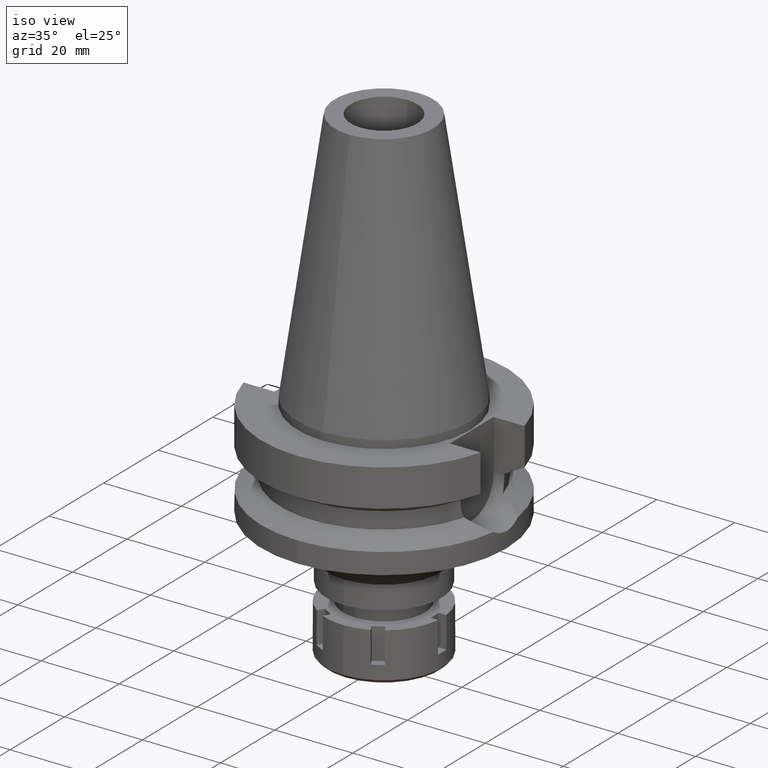
[diagram: clean part render]
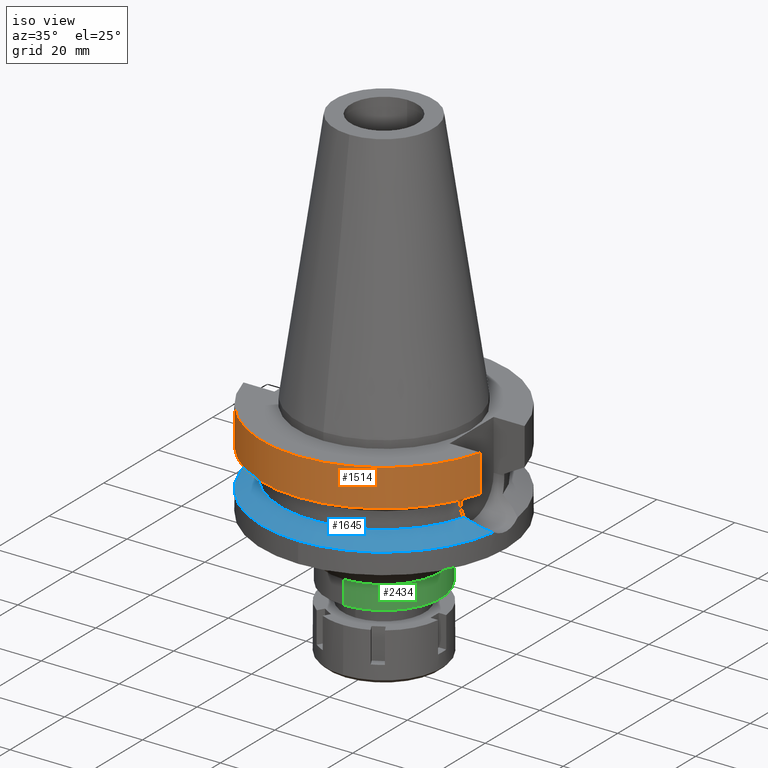
[diagram: same view with three faces highlighted in distinct colors, each labeled with its STEP entity id]
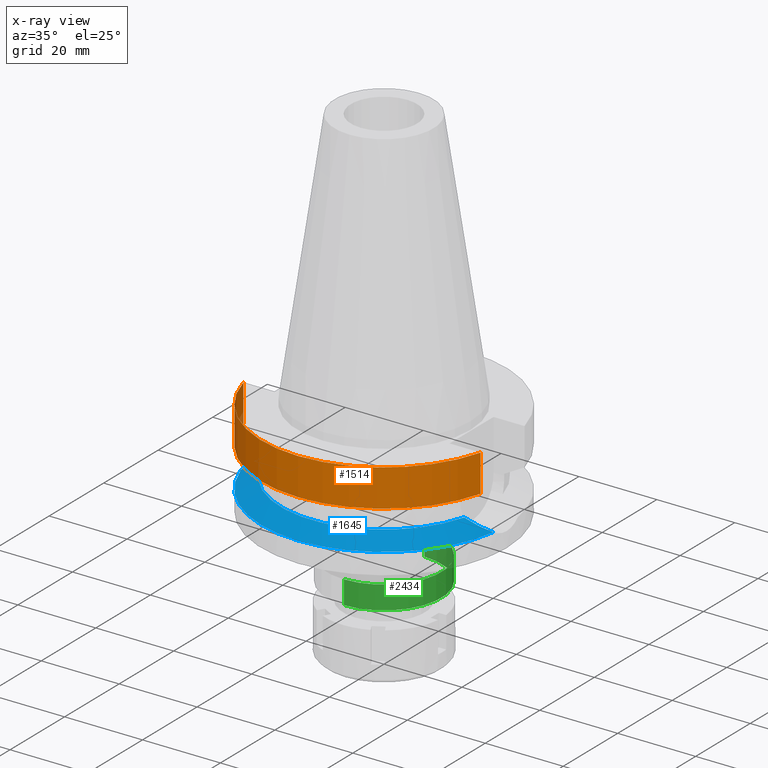
[diagram: x-ray of the same camera — body ghosted, the three highlighted faces saturated]
A machine part, iso view with three faces highlighted in distinct colors.
The next image is the same camera in x-ray (body ghosted, the three faces saturated) — at least one of them is partly hidden behind the body in this view.
Their STEP definitions:

[orange] entity #1514 — the highlighted cylindrical surface (partial cylindrical patch) has radius 31.5 mm, axis along (0, 0, -1).
#168 = VERTEX_POINT ( 'NONE', #1703 ) ;
#223 = EDGE_CURVE ( 'NONE', #168, #2693, #907, .T. ) ;
#341 = DIRECTION ( 'NONE',  ( -1.154661693704997689E-07, -4.368204397895988932E-07, -0.9999999999998978595 ) ) ;
#633 = CARTESIAN_POINT ( 'NONE',  ( -30.45402291890999891, -8.049999258039999717, -11.56551233533000023 ) ) ;
#797 = EDGE_CURVE ( 'NONE', #168, #2552, #1035, .T. ) ;
#873 = CIRCLE ( 'NONE', #1328, 31.50000000000000000 ) ;
#907 = LINE ( 'NONE', #1982, #3163 ) ;
#1035 = CIRCLE ( 'NONE', #2221, 31.50000000000000000 ) ;
#1062 = DIRECTION ( 'NONE',  ( 0.0000000000000000000, 0.0000000000000000000, -1.000000000000000000 ) ) ;
#1177 = DIRECTION ( 'NONE',  ( 0.0000000000000000000, 0.0000000000000000000, -1.000000000000000000 ) ) ;
#1321 = DIRECTION ( 'NONE',  ( 0.0000000000000000000, -1.000000000000000000, 0.0000000000000000000 ) ) ;
#1328 = AXIS2_PLACEMENT_3D ( 'NONE', #2192, #3143, #1454 ) ;
#1384 = DIRECTION ( 'NONE',  ( 0.0000000000000000000, -1.000000000000000000, 0.0000000000000000000 ) ) ;
#1454 = DIRECTION ( 'NONE',  ( 0.0000000000000000000, -1.000000000000000000, 0.0000000000000000000 ) ) ;
#1514 = ADVANCED_FACE ( 'NONE', ( #1917 ), #3565, .T. ) ;
#1544 = AXIS2_PLACEMENT_3D ( 'NONE', #2194, #1062, #1321 ) ;
#1594 = ORIENTED_EDGE ( 'NONE', *, *, #2858, .T. ) ;
#1670 = CARTESIAN_POINT ( 'NONE',  ( 0.0000000000000000000, 2.098064896298999980E-14, -2.000000000000000000 ) ) ;
#1703 = CARTESIAN_POINT ( 'NONE',  ( 30.45402272279000044, -8.050000000000000711, -2.000000000000000000 ) ) ;
#1809 = CARTESIAN_POINT ( 'NONE',  ( -30.45402291890999891, -8.049999258039999717, -11.56551233533000023 ) ) ;
#1813 = EDGE_CURVE ( 'NONE', #1943, #2552, #1931, .T. ) ;
#1854 = EDGE_LOOP ( 'NONE', ( #2889, #1594, #2707, #2425 ) ) ;
#1917 = FACE_OUTER_BOUND ( 'NONE', #1854, .T. ) ;
#1931 = LINE ( 'NONE', #633, #3351 ) ;
#1943 = VERTEX_POINT ( 'NONE', #1809 ) ;
#1970 = CARTESIAN_POINT ( 'NONE',  ( -30.45402272279000044, -8.050000000000000711, -2.000000000000000000 ) ) ;
#1982 = CARTESIAN_POINT ( 'NONE',  ( 30.45402272279000044, -8.050000000000000711, -2.000000000000000000 ) ) ;
#2192 = CARTESIAN_POINT ( 'NONE',  ( 0.0000000000000000000, 1.065333950388000029E-14, -11.56550565266999975 ) ) ;
#2194 = CARTESIAN_POINT ( 'NONE',  ( 0.0000000000000000000, 2.098064896298999980E-14, 71.31999999999999318 ) ) ;
#2221 = AXIS2_PLACEMENT_3D ( 'NONE', #1670, #1177, #1384 ) ;
#2425 = ORIENTED_EDGE ( 'NONE', *, *, #797, .T. ) ;
#2552 = VERTEX_POINT ( 'NONE', #1970 ) ;
#2693 = VERTEX_POINT ( 'NONE', #3529 ) ;
#2707 = ORIENTED_EDGE ( 'NONE', *, *, #223, .F. ) ;
#2826 = DIRECTION ( 'NONE',  ( 2.050319544476988782E-08, -7.756607190603944678E-08, 0.9999999999999967804 ) ) ;
#2858 = EDGE_CURVE ( 'NONE', #1943, #2693, #873, .T. ) ;
#2889 = ORIENTED_EDGE ( 'NONE', *, *, #1813, .F. ) ;
#3143 = DIRECTION ( 'NONE',  ( 0.0000000000000000000, 0.0000000000000000000, 1.000000000000000000 ) ) ;
#3163 = VECTOR ( 'NONE', #341, 1000.000000000000227 ) ;
#3351 = VECTOR ( 'NONE', #2826, 1000.000000000000114 ) ;
#3529 = CARTESIAN_POINT ( 'NONE',  ( 30.45402272279000044, -8.049999999999000622, -11.56550565266999975 ) ) ;
#3565 = CYLINDRICAL_SURFACE ( 'NONE', #1544, 31.50000000000000000 ) ;

[blue] entity #1645 — the highlighted conical surface has half-angle 60 deg.
#81 = CARTESIAN_POINT ( 'NONE',  ( 25.53175183775000079, -7.097862220092999941, -18.74774300138999905 ) ) ;
#265 = CARTESIAN_POINT ( 'NONE',  ( 0.0000000000000000000, 0.0000000000000000000, -18.74774300138999905 ) ) ;
#273 = CARTESIAN_POINT ( 'NONE',  ( -26.81554015597956564, -6.744970810013547258, -19.40728594741513291 ) ) ;
#277 = EDGE_LOOP ( 'NONE', ( #2096, #1717, #652, #2780, #3179 ) ) ;
#287 = VERTEX_POINT ( 'NONE', #1230 ) ;
#344 = CARTESIAN_POINT ( 'NONE',  ( 28.25235138627576603, -6.152592261718259792, -20.14184586796912768 ) ) ;
#365 = CARTESIAN_POINT ( 'NONE',  ( 27.86945335567231652, -6.314200628139903237, -19.94619761923122780 ) ) ;
#420 = AXIS2_PLACEMENT_3D ( 'NONE', #1753, #1719, #1433 ) ;
#536 = CARTESIAN_POINT ( 'NONE',  ( 0.0000000000000000000, 0.0000000000000000000, -20.19111867435999841 ) ) ;
#618 = EDGE_CURVE ( 'NONE', #2831, #2763, #1120, .T. ) ;
#635 = CIRCLE ( 'NONE', #1775, 26.49999999999998224 ) ;
#652 = ORIENTED_EDGE ( 'NONE', *, *, #2587, .F. ) ;
#779 = CARTESIAN_POINT ( 'NONE',  ( -29.24551071207741160, -5.686347265345459867, -20.64900779022842414 ) ) ;
#795 = CARTESIAN_POINT ( 'NONE',  ( -29.92159141083256557, -5.319402256931750728, -20.99398365360424279 ) ) ;
#854 = DIRECTION ( 'NONE',  ( 0.0000000000000000000, 0.0000000000000000000, 1.000000000000000000 ) ) ;
#920 = CIRCLE ( 'NONE', #2926, 31.50000000000000000 ) ;
#925 = CONICAL_SURFACE ( 'NONE', #1043, 29.00000000000000000, 1.047197551196400456 ) ;
#933 = EDGE_CURVE ( 'NONE', #287, #2831, #920, .T. ) ;
#1040 = DIRECTION ( 'NONE',  ( 0.0000000000000000000, -1.000000000000000000, 0.0000000000000000000 ) ) ;
#1043 = AXIS2_PLACEMENT_3D ( 'NONE', #536, #2701, #1040 ) ;
#1120 = B_SPLINE_CURVE_WITH_KNOTS ( 'NONE', 3,
 ( #3274, #2716, #2935, #795, #2092, #3256, #779, #2957, #1597, #2732, #2441, #3561, #273, #2692 ),
 .UNSPECIFIED., .F., .F.,
 ( 4, 2, 2, 1, 1, 2, 2, 4 ),
 ( 0.0000000000000000000, 0.2499999999999997224, 0.3749999999999990563, 0.4374999999999987232, 0.4687499999999987232, 0.4843749999999987232, 0.4999999999999987788, 1.000000000000000000 ),
 .UNSPECIFIED. ) ;
#1230 = CARTESIAN_POINT ( 'NONE',  ( 0.0000000000000000000, -31.50000000000000000, -21.63449434733000132 ) ) ;
#1302 = CARTESIAN_POINT ( 'NONE',  ( 31.17899877608999759, -4.485536235554000051, -21.63449434733000132 ) ) ;
#1358 = DIRECTION ( 'NONE',  ( -0.9634623335000935818, -0.2678438573619981722, 0.0000000000000000000 ) ) ;
#1433 = DIRECTION ( 'NONE',  ( 0.9898094849552905306, -0.1423979757318985240, 0.0000000000000000000 ) ) ;
#1441 = CARTESIAN_POINT ( 'NONE',  ( 28.82946180511639156, -5.890708039826377806, -20.43656979797730600 ) ) ;
#1457 = CARTESIAN_POINT ( 'NONE',  ( 28.43969514202140658, -6.070956264112525425, -20.23753676819694292 ) ) ;
#1468 = DIRECTION ( 'NONE',  ( 0.0000000000000000000, 0.0000000000000000000, -1.000000000000000000 ) ) ;
#1483 = VERTEX_POINT ( 'NONE', #1302 ) ;
#1597 = CARTESIAN_POINT ( 'NONE',  ( -28.96981053673506423, -5.823131797125659759, -20.50823927557765103 ) ) ;
#1645 = ADVANCED_FACE ( 'NONE', ( #1851 ), #925, .T. ) ;
#1717 = ORIENTED_EDGE ( 'NONE', *, *, #3492, .F. ) ;
#1719 = DIRECTION ( 'NONE',  ( 0.0000000000000000000, 0.0000000000000000000, -1.000000000000000000 ) ) ;
#1726 = CARTESIAN_POINT ( 'NONE',  ( 27.60324064312049330, -6.419724010670028846, -19.81007306123007439 ) ) ;
#1743 = CARTESIAN_POINT ( 'NONE',  ( 29.76042114376186731, -5.445736050609256473, -20.91197635220153472 ) ) ;
#1753 = CARTESIAN_POINT ( 'NONE',  ( 0.0000000000000000000, 0.0000000000000000000, -21.63449434733000132 ) ) ;
#1775 = AXIS2_PLACEMENT_3D ( 'NONE', #265, #854, #1358 ) ;
#1851 = FACE_OUTER_BOUND ( 'NONE', #277, .T. ) ;
#1986 = CARTESIAN_POINT ( 'NONE',  ( 26.17365085101560140, -6.921415180731088412, -19.07751696820677978 ) ) ;
#2008 = CARTESIAN_POINT ( 'NONE',  ( 28.79915898265892693, -5.905085260130360503, -20.42109570289354536 ) ) ;
#2015 = VERTEX_POINT ( 'NONE', #2382 ) ;
#2038 = CARTESIAN_POINT ( 'NONE',  ( 0.0000000000000000000, 0.0000000000000000000, -21.63449434733000132 ) ) ;
#2081 = CARTESIAN_POINT ( 'NONE',  ( 30.53419650440311628, -4.974727501845151778, -21.30622940505814356 ) ) ;
#2092 = CARTESIAN_POINT ( 'NONE',  ( -29.72007842973867042, -5.434031598386737549, -20.89120306133314031 ) ) ;
#2096 = ORIENTED_EDGE ( 'NONE', *, *, #933, .F. ) ;
#2330 = CARTESIAN_POINT ( 'NONE',  ( 31.17899877608999759, -4.485536235554000051, -21.63449434733000132 ) ) ;
#2341 = EDGE_CURVE ( 'NONE', #2763, #2015, #635, .T. ) ;
#2382 = CARTESIAN_POINT ( 'NONE',  ( 25.53175183775000079, -7.097862220092999941, -18.74774300138999905 ) ) ;
#2441 = CARTESIAN_POINT ( 'NONE',  ( -28.88676039822705377, -5.863320934598894141, -20.46583029993504965 ) ) ;
#2458 = CARTESIAN_POINT ( 'NONE',  ( -31.17899877608999759, -4.485536235554000051, -21.63449434733000132 ) ) ;
#2548 = CARTESIAN_POINT ( 'NONE',  ( 28.65107865283486177, -5.974467339090846707, -20.34547993876199357 ) ) ;
#2587 = EDGE_CURVE ( 'NONE', #2015, #1483, #3262, .T. ) ;
#2692 = CARTESIAN_POINT ( 'NONE',  ( -25.53175183775000079, -7.097862220092999941, -18.74774300138999905 ) ) ;
#2696 = CARTESIAN_POINT ( 'NONE',  ( -25.53175183775000079, -7.097862220092999941, -18.74774300138999905 ) ) ;
#2701 = DIRECTION ( 'NONE',  ( 0.0000000000000000000, 0.0000000000000000000, -1.000000000000000000 ) ) ;
#2716 = CARTESIAN_POINT ( 'NONE',  ( -30.85659570990213396, -4.730133333199276535, -21.47036089346375931 ) ) ;
#2732 = CARTESIAN_POINT ( 'NONE',  ( -28.91388946736158161, -5.850255072922319499, -20.47968383843204876 ) ) ;
#2763 = VERTEX_POINT ( 'NONE', #2696 ) ;
#2780 = ORIENTED_EDGE ( 'NONE', *, *, #2341, .F. ) ;
#2804 = CARTESIAN_POINT ( 'NONE',  ( 26.77176042901642461, -6.727640408791173421, -19.38441322664797539 ) ) ;
#2831 = VERTEX_POINT ( 'NONE', #2458 ) ;
#2857 = DIRECTION ( 'NONE',  ( 0.0000000000000000000, -1.000000000000000000, 0.0000000000000000000 ) ) ;
#2926 = AXIS2_PLACEMENT_3D ( 'NONE', #2038, #1468, #2857 ) ;
#2935 = CARTESIAN_POINT ( 'NONE',  ( -30.50194348531429256, -4.970135316737882114, -21.28982413302286147 ) ) ;
#2957 = CARTESIAN_POINT ( 'NONE',  ( -29.05331422097026817, -5.782332426231231892, -20.55087818141452871 ) ) ;
#3123 = CIRCLE ( 'NONE', #420, 31.50000000000001421 ) ;
#3179 = ORIENTED_EDGE ( 'NONE', *, *, #618, .F. ) ;
#3256 = CARTESIAN_POINT ( 'NONE',  ( -29.40571552369783603, -5.602775577380048944, -20.73078101441133825 ) ) ;
#3262 = B_SPLINE_CURVE_WITH_KNOTS ( 'NONE', 3,
 ( #81, #1986, #2804, #1726, #365, #344, #1457, #2548, #3406, #2008, #1441, #1743, #2081, #2330 ),
 .UNSPECIFIED., .F., .F.,
 ( 4, 2, 2, 1, 1, 2, 2, 4 ),
 ( 0.0000000000000000000, 0.2499999999999986677, 0.3749999999999980016, 0.4374999999999976130, 0.4687499999999973910, 0.4843749999999981681, 0.4999999999999990008, 1.000000000000000000 ),
 .UNSPECIFIED. ) ;
#3274 = CARTESIAN_POINT ( 'NONE',  ( -31.17899877608999759, -4.485536235554000051, -21.63449434733000132 ) ) ;
#3406 = CARTESIAN_POINT ( 'NONE',  ( 28.74013211370711218, -5.932869399142538747, -20.39095403512538951 ) ) ;
#3492 = EDGE_CURVE ( 'NONE', #1483, #287, #3123, .T. ) ;
#3561 = CARTESIAN_POINT ( 'NONE',  ( -27.92415303611726429, -6.323415574179257703, -19.97425974433526363 ) ) ;

[green] entity #2434 — the highlighted cylindrical surface (partial cylindrical patch) has radius 14.75 mm, axis along (0, 0, -1).
#34 = ORIENTED_EDGE ( 'NONE', *, *, #1391, .F. ) ;
#161 = DIRECTION ( 'NONE',  ( 0.0000000000000000000, 0.0000000000000000000, -1.000000000000000000 ) ) ;
#232 = VECTOR ( 'NONE', #161, 1000.000000000000000 ) ;
#263 = CARTESIAN_POINT ( 'NONE',  ( 0.0000000000000000000, -14.75000000000000000, -43.00000000000000000 ) ) ;
#270 = VERTEX_POINT ( 'NONE', #2255 ) ;
#431 = CARTESIAN_POINT ( 'NONE',  ( 0.0000000000000000000, 14.75000000000000000, -37.00000000000000000 ) ) ;
#567 = CARTESIAN_POINT ( 'NONE',  ( 0.0000000000000000000, 2.098064896298999980E-14, -43.00000000000000000 ) ) ;
#649 = LINE ( 'NONE', #3140, #1893 ) ;
#726 = LINE ( 'NONE', #431, #232 ) ;
#922 = AXIS2_PLACEMENT_3D ( 'NONE', #567, #2395, #3520 ) ;
#1131 = FACE_OUTER_BOUND ( 'NONE', #1228, .T. ) ;
#1134 = EDGE_CURVE ( 'NONE', #1548, #1545, #1430, .T. ) ;
#1228 = EDGE_LOOP ( 'NONE', ( #1644, #2082, #2988, #34 ) ) ;
#1391 = EDGE_CURVE ( 'NONE', #270, #1545, #726, .T. ) ;
#1430 = CIRCLE ( 'NONE', #922, 14.75000000000000000 ) ;
#1545 = VERTEX_POINT ( 'NONE', #2753 ) ;
#1548 = VERTEX_POINT ( 'NONE', #263 ) ;
#1644 = ORIENTED_EDGE ( 'NONE', *, *, #2384, .T. ) ;
#1893 = VECTOR ( 'NONE', #2543, 1000.000000000000000 ) ;
#1934 = CARTESIAN_POINT ( 'NONE',  ( 0.0000000000000000000, 2.098064896298999980E-14, 71.31999999999999318 ) ) ;
#2082 = ORIENTED_EDGE ( 'NONE', *, *, #3434, .T. ) ;
#2208 = CYLINDRICAL_SURFACE ( 'NONE', #2757, 14.75000000000000000 ) ;
#2255 = CARTESIAN_POINT ( 'NONE',  ( 0.0000000000000000000, 14.75000000000000000, -37.00000000000000000 ) ) ;
#2384 = EDGE_CURVE ( 'NONE', #270, #3538, #2519, .T. ) ;
#2395 = DIRECTION ( 'NONE',  ( 0.0000000000000000000, 0.0000000000000000000, 1.000000000000000000 ) ) ;
#2434 = ADVANCED_FACE ( 'NONE', ( #1131 ), #2208, .T. ) ;
#2464 = AXIS2_PLACEMENT_3D ( 'NONE', #3566, #3038, #3078 ) ;
#2519 = CIRCLE ( 'NONE', #2464, 14.75000000000000000 ) ;
#2543 = DIRECTION ( 'NONE',  ( 0.0000000000000000000, 0.0000000000000000000, -1.000000000000000000 ) ) ;
#2753 = CARTESIAN_POINT ( 'NONE',  ( 0.0000000000000000000, 14.75000000000000000, -43.00000000000000000 ) ) ;
#2757 = AXIS2_PLACEMENT_3D ( 'NONE', #1934, #3373, #3147 ) ;
#2988 = ORIENTED_EDGE ( 'NONE', *, *, #1134, .T. ) ;
#3038 = DIRECTION ( 'NONE',  ( 0.0000000000000000000, 0.0000000000000000000, -1.000000000000000000 ) ) ;
#3078 = DIRECTION ( 'NONE',  ( 0.0000000000000000000, 1.000000000000000000, 0.0000000000000000000 ) ) ;
#3140 = CARTESIAN_POINT ( 'NONE',  ( 0.0000000000000000000, -14.75000000000000000, -37.00000000000000000 ) ) ;
#3147 = DIRECTION ( 'NONE',  ( 0.0000000000000000000, -1.000000000000000000, 0.0000000000000000000 ) ) ;
#3373 = DIRECTION ( 'NONE',  ( 0.0000000000000000000, 0.0000000000000000000, -1.000000000000000000 ) ) ;
#3395 = CARTESIAN_POINT ( 'NONE',  ( 0.0000000000000000000, -14.75000000000000000, -37.00000000000000000 ) ) ;
#3434 = EDGE_CURVE ( 'NONE', #3538, #1548, #649, .T. ) ;
#3520 = DIRECTION ( 'NONE',  ( 0.0000000000000000000, -1.000000000000000000, 0.0000000000000000000 ) ) ;
#3538 = VERTEX_POINT ( 'NONE', #3395 ) ;
#3566 = CARTESIAN_POINT ( 'NONE',  ( 0.0000000000000000000, 0.0000000000000000000, -37.00000000000000000 ) ) ;